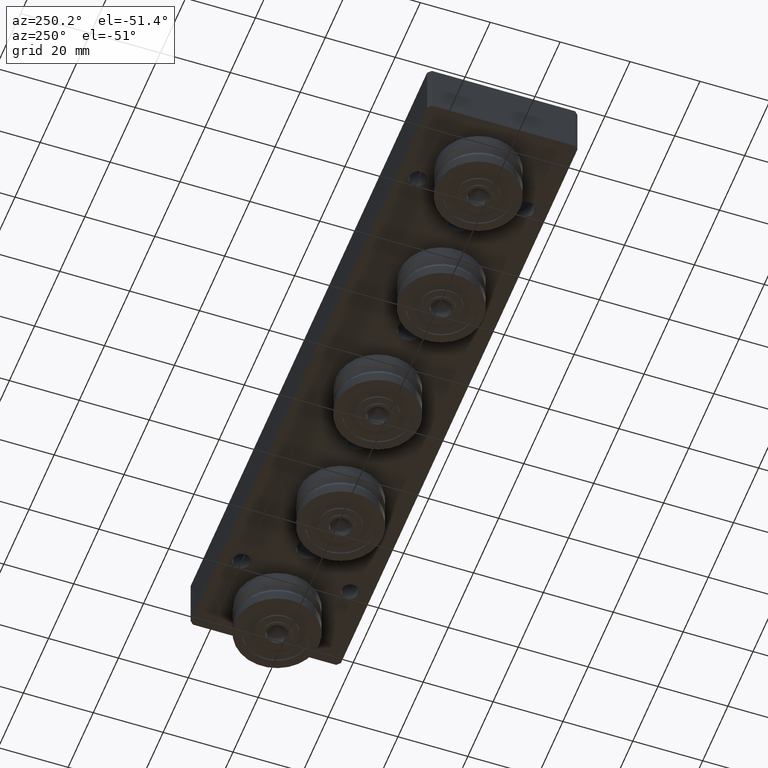
[diagram: clean part render]
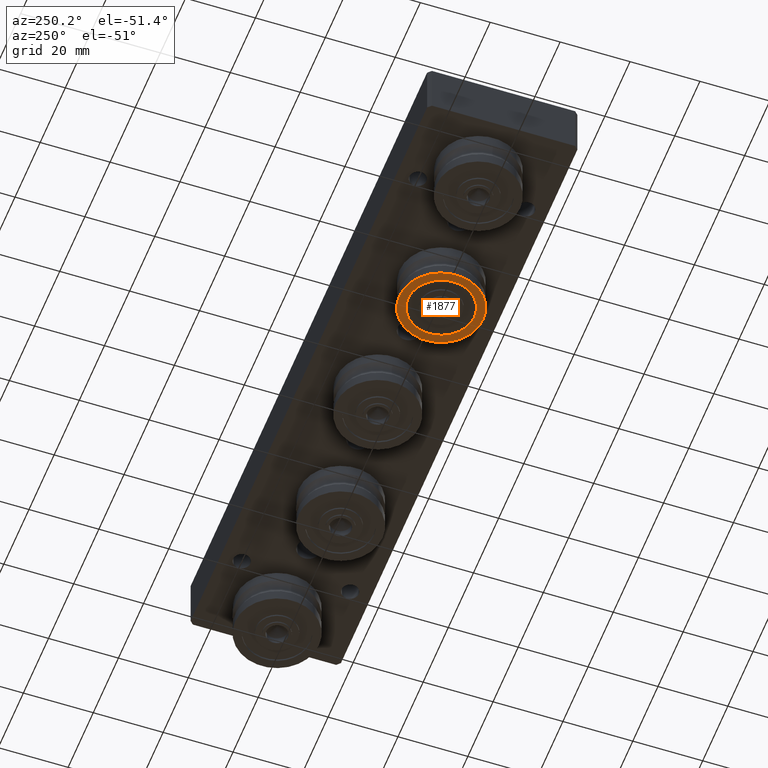
[diagram: same view with one face highlighted and labeled with its STEP entity id]
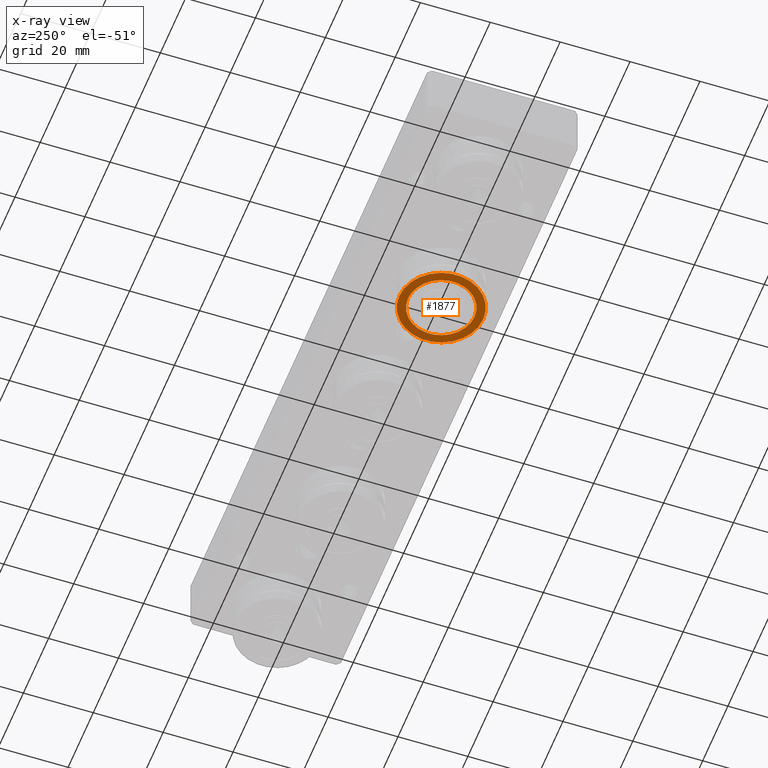
[diagram: x-ray of the same camera — body ghosted, the highlighted face saturated]
A machine part, auxiliary view. The second image highlights one B-rep face of the part: STEP entity #1877.
The next image is the same camera in x-ray: the body ghosted, the highlighted face saturated — about 0% of this face is hidden behind the body in this view.
In plain terms, the highlighted planar face has unit normal (0, 0, -1).
Its self-contained STEP definition (entity closure, byte-faithful):
#239=FACE_BOUND('',#611,.T.);
#332=CIRCLE('',#2238,9.5);
#333=CIRCLE('',#2240,12.);
#447=FACE_OUTER_BOUND('',#610,.T.);
#610=EDGE_LOOP('',(#1681));
#611=EDGE_LOOP('',(#1682));
#1012=VERTEX_POINT('',#3376);
#1013=VERTEX_POINT('',#3380);
#1237=EDGE_CURVE('',#1012,#1012,#332,.T.);
#1238=EDGE_CURVE('',#1013,#1013,#333,.T.);
#1681=ORIENTED_EDGE('',*,*,#1238,.F.);
#1682=ORIENTED_EDGE('',*,*,#1237,.T.);
#1771=PLANE('',#2239);
#1877=ADVANCED_FACE('',(#447,#239),#1771,.T.);
#2238=AXIS2_PLACEMENT_3D('',#3378,#2803,#2804);
#2239=AXIS2_PLACEMENT_3D('',#3379,#2805,#2806);
#2240=AXIS2_PLACEMENT_3D('',#3381,#2807,#2808);
#2803=DIRECTION('center_axis',(1.,0.,0.));
#2804=DIRECTION('ref_axis',(0.,1.,0.));
#2805=DIRECTION('center_axis',(-1.,0.,0.));
#2806=DIRECTION('ref_axis',(0.,0.,1.));
#2807=DIRECTION('center_axis',(1.,0.,0.));
#2808=DIRECTION('ref_axis',(0.,1.,0.));
#3376=CARTESIAN_POINT('',(-5.5,-9.5,-1.16341445918999E-15));
#3378=CARTESIAN_POINT('Origin',(-5.5,0.,0.));
#3379=CARTESIAN_POINT('Origin',(-5.5,10.75,0.));
#3380=CARTESIAN_POINT('',(-5.5,-12.,-1.46957615897682E-15));
#3381=CARTESIAN_POINT('Origin',(-5.5,0.,0.));